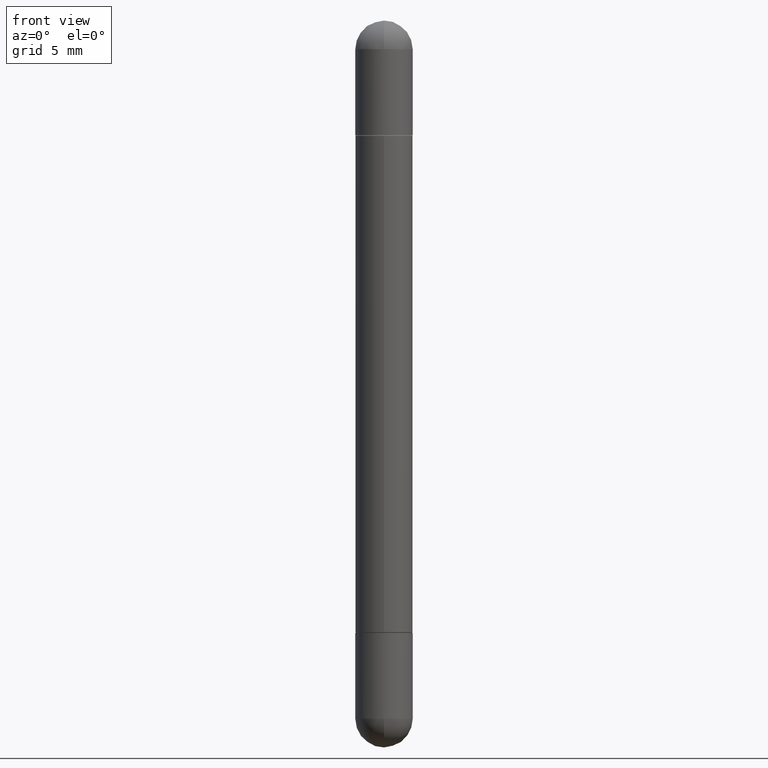
[diagram: clean part render]
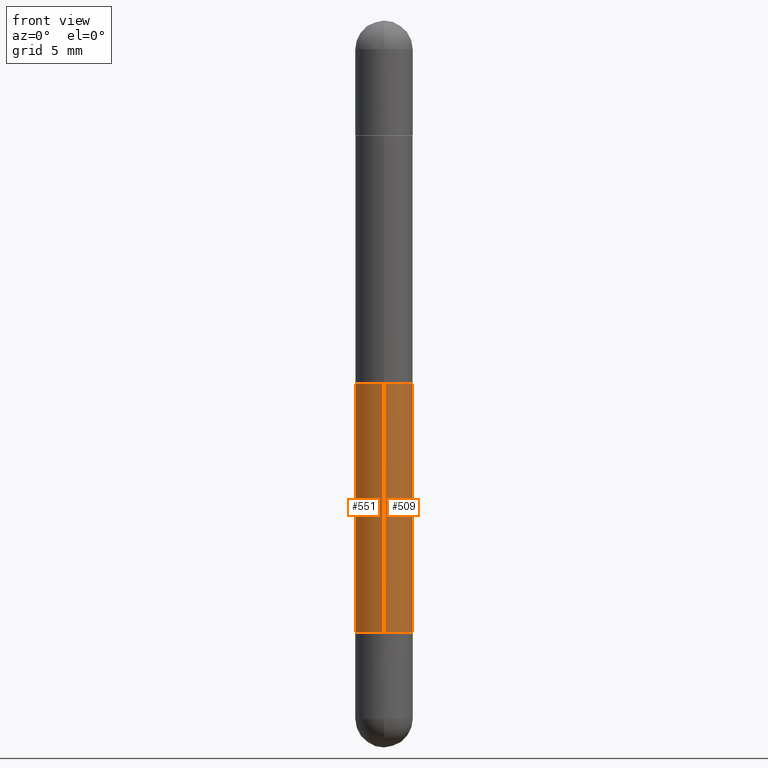
[diagram: same view with one multi-face feature highlighted, each face labeled with its STEP entity id]
A machine part, front view. The highlighted faces form ONE feature: a constant-radius fillet chain: 2 tangent blend faces with common blend radius 1.4999 mm. The faces share edges in the B-rep.
Their STEP definitions:
[1] entity #551 (Cylinder):
#3 = ORIENTED_EDGE ( 'NONE', *, *, #510, .F. ) ;
#79 = DIRECTION ( 'NONE',  ( -2.436217411608901762E-29, 3.504729862432993051E-15, -1.000000000000000000 ) ) ;
#135 = VECTOR ( 'NONE', #325, 39.37007874015748143 ) ;
#138 = DIRECTION ( 'NONE',  ( 2.436217411608901481E-29, -3.504729862432993051E-15, 1.000000000000000000 ) ) ;
#154 = CARTESIAN_POINT ( 'NONE',  ( 4.051124067684280967E-16, 0.05904999999999579335, -1.258900000000000130 ) ) ;
#155 = ORIENTED_EDGE ( 'NONE', *, *, #628, .T. ) ;
#184 = CARTESIAN_POINT ( 'NONE',  ( -4.123439461173747722E-16, -0.05905000000000010935, -1.496100000000000430 ) ) ;
#193 = FACE_OUTER_BOUND ( 'NONE', #438, .T. ) ;
#226 = AXIS2_PLACEMENT_3D ( 'NONE', #574, #518, #762 ) ;
#228 = VERTEX_POINT ( 'NONE', #154 ) ;
#274 = ORIENTED_EDGE ( 'NONE', *, *, #540, .F. ) ;
#275 = CARTESIAN_POINT ( 'NONE',  ( -4.123439461173447462E-16, -0.05905000000000461963, -1.258899999999999464 ) ) ;
#290 = VECTOR ( 'NONE', #79, 39.37007874015748143 ) ;
#325 = DIRECTION ( 'NONE',  ( -2.436217411608901762E-29, 3.504729862432993051E-15, -1.000000000000000000 ) ) ;
#370 = CIRCLE ( 'NONE', #693, 0.05905000000000020649 ) ;
#375 = CARTESIAN_POINT ( 'NONE',  ( 4.051124067684096571E-16, 0.05905000000000010935, -1.496099999999999985 ) ) ;
#386 = CYLINDRICAL_SURFACE ( 'NONE', #226, 0.05905000000000010935 ) ;
#390 = VERTEX_POINT ( 'NONE', #570 ) ;
#417 = ORIENTED_EDGE ( 'NONE', *, *, #572, .T. ) ;
#438 = EDGE_LOOP ( 'NONE', ( #3, #155, #417, #274 ) ) ;
#510 = EDGE_CURVE ( 'NONE', #390, #659, #370, .T. ) ;
#511 = DIRECTION ( 'NONE',  ( -2.436217411608901481E-29, 3.504729862432993051E-15, 1.000000000000000000 ) ) ;
#516 = LINE ( 'NONE', #375, #290 ) ;
#518 = DIRECTION ( 'NONE',  ( -2.436217411608901481E-29, 3.504729862432993051E-15, -1.000000000000000000 ) ) ;
#528 = LINE ( 'NONE', #184, #135 ) ;
#540 = EDGE_CURVE ( 'NONE', #659, #721, #528, .T. ) ;
#551 = ADVANCED_FACE ( 'NONE', ( #193 ), #386, .T. ) ;
#570 = CARTESIAN_POINT ( 'NONE',  ( 4.051124067684410143E-16, 0.05904999999999580029, -0.2372000000000002162 ) ) ;
#572 = EDGE_CURVE ( 'NONE', #228, #721, #747, .T. ) ;
#574 = CARTESIAN_POINT ( 'NONE',  ( 0.000000000000000000, 0.000000000000000000, -1.496100000000000207 ) ) ;
#581 = CARTESIAN_POINT ( 'NONE',  ( 3.066954099474445427E-29, -4.412104423816894062E-15, -0.2372000000000004105 ) ) ;
#628 = EDGE_CURVE ( 'NONE', #390, #228, #516, .T. ) ;
#634 = CARTESIAN_POINT ( 'NONE',  ( 3.066954099474445427E-29, -4.412104423816894062E-15, -1.258899999999999686 ) ) ;
#644 = DIRECTION ( 'NONE',  ( -6.982962677686265922E-15, -1.000000000000000000, -3.469747663417765169E-15 ) ) ;
#659 = VERTEX_POINT ( 'NONE', #766 ) ;
#693 = AXIS2_PLACEMENT_3D ( 'NONE', #581, #138, #644 ) ;
#721 = VERTEX_POINT ( 'NONE', #275 ) ;
#747 = CIRCLE ( 'NONE', #761, 0.05905000000000020649 ) ;
#761 = AXIS2_PLACEMENT_3D ( 'NONE', #634, #511, #768 ) ;
#762 = DIRECTION ( 'NONE',  ( -6.982962677686265922E-15, -1.000000000000000000, -4.626330217890360659E-15 ) ) ;
#766 = CARTESIAN_POINT ( 'NONE',  ( -4.123439461173447462E-16, -0.05905000000000460575, -0.2372000000000006048 ) ) ;
#768 = DIRECTION ( 'NONE',  ( -6.982962677686265922E-15, -1.000000000000000000, 4.626330217890353559E-15 ) ) ;
[2] entity #509 (Cylinder):
#17 = AXIS2_PLACEMENT_3D ( 'NONE', #131, #76, #522 ) ;
#29 = EDGE_CURVE ( 'NONE', #659, #390, #665, .T. ) ;
#42 = ORIENTED_EDGE ( 'NONE', *, *, #628, .F. ) ;
#76 = DIRECTION ( 'NONE',  ( -2.436217411608901481E-29, 3.504729862432993051E-15, -1.000000000000000000 ) ) ;
#79 = DIRECTION ( 'NONE',  ( -2.436217411608901762E-29, 3.504729862432993051E-15, -1.000000000000000000 ) ) ;
#131 = CARTESIAN_POINT ( 'NONE',  ( 0.000000000000000000, 0.000000000000000000, -1.496100000000000207 ) ) ;
#135 = VECTOR ( 'NONE', #325, 39.37007874015748143 ) ;
#154 = CARTESIAN_POINT ( 'NONE',  ( 4.051124067684280967E-16, 0.05904999999999579335, -1.258900000000000130 ) ) ;
#175 = DIRECTION ( 'NONE',  ( 2.436217411608901481E-29, -3.504729862432993051E-15, 1.000000000000000000 ) ) ;
#182 = ORIENTED_EDGE ( 'NONE', *, *, #29, .F. ) ;
#184 = CARTESIAN_POINT ( 'NONE',  ( -4.123439461173747722E-16, -0.05905000000000010935, -1.496100000000000430 ) ) ;
#224 = EDGE_CURVE ( 'NONE', #721, #228, #815, .T. ) ;
#228 = VERTEX_POINT ( 'NONE', #154 ) ;
#275 = CARTESIAN_POINT ( 'NONE',  ( -4.123439461173447462E-16, -0.05905000000000461963, -1.258899999999999464 ) ) ;
#290 = VECTOR ( 'NONE', #79, 39.37007874015748143 ) ;
#308 = ORIENTED_EDGE ( 'NONE', *, *, #224, .T. ) ;
#325 = DIRECTION ( 'NONE',  ( -2.436217411608901762E-29, 3.504729862432993051E-15, -1.000000000000000000 ) ) ;
#375 = CARTESIAN_POINT ( 'NONE',  ( 4.051124067684096571E-16, 0.05905000000000010935, -1.496099999999999985 ) ) ;
#390 = VERTEX_POINT ( 'NONE', #570 ) ;
#404 = ORIENTED_EDGE ( 'NONE', *, *, #540, .T. ) ;
#407 = CARTESIAN_POINT ( 'NONE',  ( 3.066954099474445427E-29, -4.412104423816894062E-15, -1.258899999999999686 ) ) ;
#428 = CYLINDRICAL_SURFACE ( 'NONE', #17, 0.05905000000000010935 ) ;
#508 = DIRECTION ( 'NONE',  ( -6.982962677686265922E-15, -1.000000000000000000, -3.469747663417765169E-15 ) ) ;
#509 = ADVANCED_FACE ( 'NONE', ( #809 ), #428, .T. ) ;
#516 = LINE ( 'NONE', #375, #290 ) ;
#522 = DIRECTION ( 'NONE',  ( -6.982962677686265922E-15, -1.000000000000000000, -4.626330217890360659E-15 ) ) ;
#528 = LINE ( 'NONE', #184, #135 ) ;
#540 = EDGE_CURVE ( 'NONE', #659, #721, #528, .T. ) ;
#570 = CARTESIAN_POINT ( 'NONE',  ( 4.051124067684410143E-16, 0.05904999999999580029, -0.2372000000000002162 ) ) ;
#597 = DIRECTION ( 'NONE',  ( -2.436217411608901481E-29, 3.504729862432993051E-15, 1.000000000000000000 ) ) ;
#599 = EDGE_LOOP ( 'NONE', ( #42, #182, #404, #308 ) ) ;
#628 = EDGE_CURVE ( 'NONE', #390, #228, #516, .T. ) ;
#659 = VERTEX_POINT ( 'NONE', #766 ) ;
#665 = CIRCLE ( 'NONE', #782, 0.05905000000000020649 ) ;
#721 = VERTEX_POINT ( 'NONE', #275 ) ;
#733 = DIRECTION ( 'NONE',  ( -6.982962677686265922E-15, -1.000000000000000000, 4.626330217890353559E-15 ) ) ;
#748 = CARTESIAN_POINT ( 'NONE',  ( 3.066954099474445427E-29, -4.412104423816894062E-15, -0.2372000000000004105 ) ) ;
#766 = CARTESIAN_POINT ( 'NONE',  ( -4.123439461173447462E-16, -0.05905000000000460575, -0.2372000000000006048 ) ) ;
#782 = AXIS2_PLACEMENT_3D ( 'NONE', #748, #175, #508 ) ;
#785 = AXIS2_PLACEMENT_3D ( 'NONE', #407, #597, #733 ) ;
#809 = FACE_OUTER_BOUND ( 'NONE', #599, .T. ) ;
#815 = CIRCLE ( 'NONE', #785, 0.05905000000000020649 ) ;